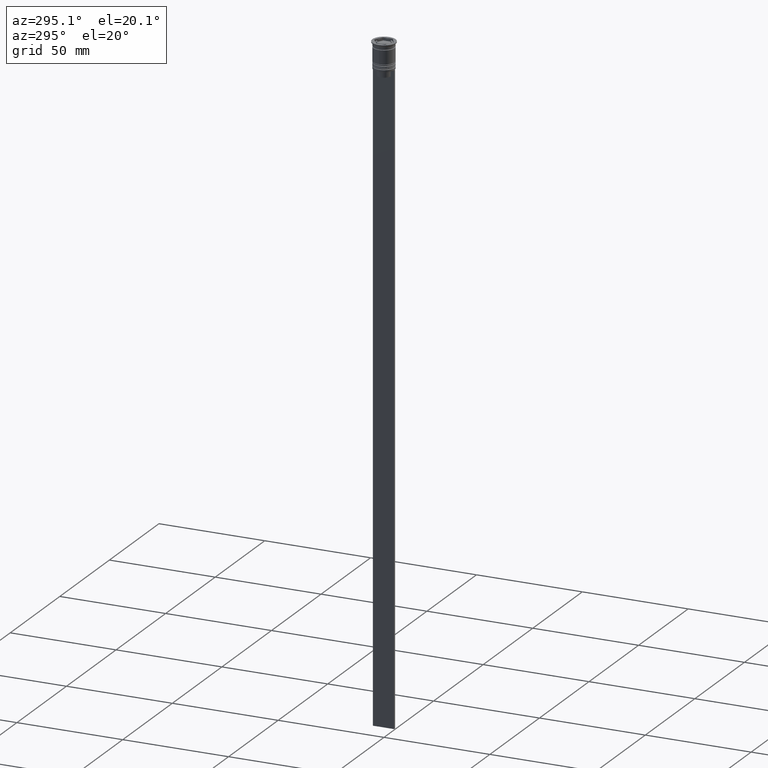
[diagram: clean part render]
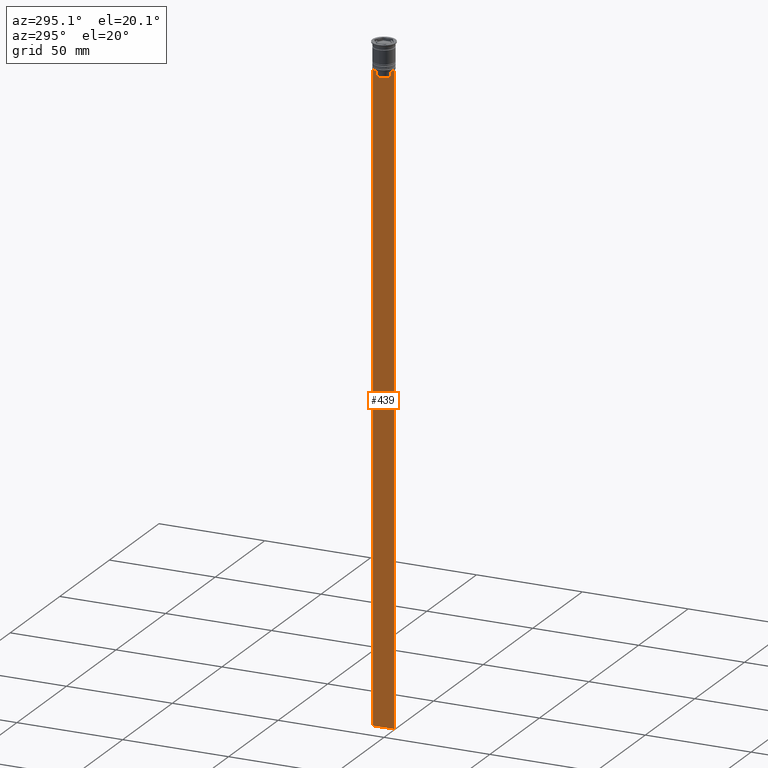
[diagram: same view with one face highlighted and labeled with its STEP entity id]
A machine part, auxiliary view. The second image highlights one B-rep face of the part: STEP entity #439.
In plain terms, the highlighted planar face has unit normal (-1, 0, 0).
Its self-contained STEP definition (entity closure, byte-faithful):
#34 = DIRECTION ( 'NONE',  ( 0.000000000000000000, -1.000000000000000000, 0.000000000000000000 ) ) ;
#39 = EDGE_CURVE ( 'NONE', #1666, #1470, #708, .T. ) ;
#58 = CARTESIAN_POINT ( 'NONE',  ( -0.5000000000000000000, 3.363034344160045208, -13.00000000000000178 ) ) ;
#72 = CARTESIAN_POINT ( 'NONE',  ( -0.5000000000000000000, 5.000000000000000888, -312.5000000000000000 ) ) ;
#96 = LINE ( 'NONE', #1085, #246 ) ;
#122 = CARTESIAN_POINT ( 'NONE',  ( -0.5000000000000000000, 5.000000000000000888, -2.450124378879110054 ) ) ;
#155 = VERTEX_POINT ( 'NONE', #1929 ) ;
#211 = EDGE_CURVE ( 'NONE', #1460, #2247, #1370, .T. ) ;
#228 = CARTESIAN_POINT ( 'NONE',  ( -0.5000000000000000000, 3.699657965831574913, -12.66677026074361301 ) ) ;
#246 = VECTOR ( 'NONE', #2482, 1000.000000000000000 ) ;
#266 = CARTESIAN_POINT ( 'NONE',  ( -0.5000000000000000000, -4.999999999999999112, -2.450124378879110054 ) ) ;
#329 = VERTEX_POINT ( 'NONE', #1436 ) ;
#424 = CARTESIAN_POINT ( 'NONE',  ( -0.5000000000000000000, -4.999999999999999112, -12.50000000000000000 ) ) ;
#437 = DIRECTION ( 'NONE',  ( 0.000000000000000000, 0.000000000000000000, -1.000000000000000000 ) ) ;
#439 = ADVANCED_FACE ( 'NONE', ( #1646 ), #2499, .T. ) ;
#463 = ORIENTED_EDGE ( 'NONE', *, *, #2083, .F. ) ;
#496 = CARTESIAN_POINT ( 'NONE',  ( -0.5000000000000000000, -4.874423042781575788, -12.50000000000000000 ) ) ;
#508 = CARTESIAN_POINT ( 'NONE',  ( -0.5000000000000000000, -4.999999999999999112, -2.450124378879110054 ) ) ;
#509 = EDGE_CURVE ( 'NONE', #904, #1625, #1903, .T. ) ;
#632 = EDGE_LOOP ( 'NONE', ( #1140, #1892, #860, #696, #700, #463, #1824, #2203, #2492, #1721, #1388, #2393 ) ) ;
#662 = DIRECTION ( 'NONE',  ( 0.000000000000000000, 0.000000000000000000, 1.000000000000000000 ) ) ;
#696 = ORIENTED_EDGE ( 'NONE', *, *, #2156, .T. ) ;
#700 = ORIENTED_EDGE ( 'NONE', *, *, #509, .F. ) ;
#703 = DIRECTION ( 'NONE',  ( 0.000000000000000000, 0.000000000000000000, -1.000000000000000000 ) ) ;
#708 = LINE ( 'NONE', #1676, #1511 ) ;
#723 = LINE ( 'NONE', #1287, #1490 ) ;
#736 = VERTEX_POINT ( 'NONE', #2398 ) ;
#756 = CARTESIAN_POINT ( 'NONE',  ( -0.5000000000000000000, -3.363034344160045208, -13.00000000000000178 ) ) ;
#774 = EDGE_CURVE ( 'NONE', #329, #736, #2208, .T. ) ;
#843 = DIRECTION ( 'NONE',  ( 0.000000000000000000, -1.000000000000000000, 0.000000000000000000 ) ) ;
#854 = LINE ( 'NONE', #508, #914 ) ;
#855 = VECTOR ( 'NONE', #2483, 1000.000000000000000 ) ;
#860 = ORIENTED_EDGE ( 'NONE', *, *, #774, .F. ) ;
#904 = VERTEX_POINT ( 'NONE', #1900 ) ;
#914 = VECTOR ( 'NONE', #703, 1000.000000000000000 ) ;
#954 = CARTESIAN_POINT ( 'NONE',  ( -0.5000000000000000000, -3.867815921162742754, -12.50000000000000000 ) ) ;
#1010 = CARTESIAN_POINT ( 'NONE',  ( -0.5000000000000000000, -4.999999999999999112, -12.50000000000000000 ) ) ;
#1017 = DIRECTION ( 'NONE',  ( 0.000000000000000000, -1.000000000000000000, 0.000000000000000000 ) ) ;
#1033 = VECTOR ( 'NONE', #1713, 1000.000000000000000 ) ;
#1047 = CARTESIAN_POINT ( 'NONE',  ( -0.5000000000000000000, -3.363034344160045208, -13.00000000000000178 ) ) ;
#1085 = CARTESIAN_POINT ( 'NONE',  ( -0.5000000000000000000, -3.363034344160045208, 0.000000000000000000 ) ) ;
#1096 = CARTESIAN_POINT ( 'NONE',  ( -0.5000000000000000000, 3.867815921162742754, -12.50000000000000000 ) ) ;
#1140 = ORIENTED_EDGE ( 'NONE', *, *, #1488, .F. ) ;
#1199 = VECTOR ( 'NONE', #34, 1000.000000000000000 ) ;
#1220 = LINE ( 'NONE', #2218, #1236 ) ;
#1236 = VECTOR ( 'NONE', #437, 1000.000000000000000 ) ;
#1265 = DIRECTION ( 'NONE',  ( -1.000000000000000000, 0.000000000000000000, 0.000000000000000000 ) ) ;
#1287 = CARTESIAN_POINT ( 'NONE',  ( -0.5000000000000000000, -4.999999999999999112, -12.50000000000000000 ) ) ;
#1314 = EDGE_CURVE ( 'NONE', #736, #2132, #723, .T. ) ;
#1370 = B_SPLINE_CURVE_WITH_KNOTS ( 'NONE', 3,
 ( #756, #2159, #1979, #2315 ),
 .UNSPECIFIED., .F., .F.,
 ( 4, 4 ),
 ( 0.01632394437298965648, 0.01703543518243618576 ),
 .UNSPECIFIED. ) ;
#1388 = ORIENTED_EDGE ( 'NONE', *, *, #2530, .F. ) ;
#1436 = CARTESIAN_POINT ( 'NONE',  ( -0.5000000000000000000, 5.000000000000000888, -12.50000000000000000 ) ) ;
#1449 = CARTESIAN_POINT ( 'NONE',  ( -0.5000000000000000000, -4.999999999999999112, -312.5000000000000000 ) ) ;
#1450 = CARTESIAN_POINT ( 'NONE',  ( -0.5000000000000000000, 3.867815921162742754, -12.50000000000000000 ) ) ;
#1457 = EDGE_CURVE ( 'NONE', #2247, #1666, #1583, .T. ) ;
#1460 = VERTEX_POINT ( 'NONE', #1047 ) ;
#1470 = VERTEX_POINT ( 'NONE', #1010 ) ;
#1488 = EDGE_CURVE ( 'NONE', #2132, #2213, #2140, .T. ) ;
#1490 = VECTOR ( 'NONE', #2089, 1000.000000000000000 ) ;
#1496 = DIRECTION ( 'NONE',  ( 0.000000000000000000, -1.000000000000000000, 0.000000000000000000 ) ) ;
#1511 = VECTOR ( 'NONE', #1496, 1000.000000000000000 ) ;
#1583 = LINE ( 'NONE', #1796, #2075 ) ;
#1593 = CARTESIAN_POINT ( 'NONE',  ( -0.5000000000000000000, 3.531412678228260216, -12.83345231756357840 ) ) ;
#1625 = VERTEX_POINT ( 'NONE', #72 ) ;
#1634 = CARTESIAN_POINT ( 'NONE',  ( -0.5000000000000000000, 3.399999999999998135, -15.50000000000000000 ) ) ;
#1646 = FACE_OUTER_BOUND ( 'NONE', #632, .T. ) ;
#1666 = VERTEX_POINT ( 'NONE', #496 ) ;
#1676 = CARTESIAN_POINT ( 'NONE',  ( -0.5000000000000000000, -4.999999999999999112, -12.50000000000000000 ) ) ;
#1713 = DIRECTION ( 'NONE',  ( 0.000000000000000000, 0.000000000000000000, -1.000000000000000000 ) ) ;
#1721 = ORIENTED_EDGE ( 'NONE', *, *, #2069, .F. ) ;
#1796 = CARTESIAN_POINT ( 'NONE',  ( -0.5000000000000000000, -4.999999999999999112, -12.50000000000000000 ) ) ;
#1813 = VECTOR ( 'NONE', #1017, 1000.000000000000000 ) ;
#1824 = ORIENTED_EDGE ( 'NONE', *, *, #39, .F. ) ;
#1892 = ORIENTED_EDGE ( 'NONE', *, *, #1314, .F. ) ;
#1895 = EDGE_CURVE ( 'NONE', #2213, #155, #1220, .T. ) ;
#1900 = CARTESIAN_POINT ( 'NONE',  ( -0.5000000000000000000, -4.999999999999999112, -312.5000000000000000 ) ) ;
#1903 = LINE ( 'NONE', #1449, #855 ) ;
#1913 = LINE ( 'NONE', #122, #1033 ) ;
#1929 = CARTESIAN_POINT ( 'NONE',  ( -0.5000000000000000000, 3.363034344160045652, -15.50000000000000000 ) ) ;
#1979 = CARTESIAN_POINT ( 'NONE',  ( -0.5000000000000000000, -3.699658232838647365, -12.66676999593996555 ) ) ;
#2069 = EDGE_CURVE ( 'NONE', #2110, #1460, #96, .T. ) ;
#2075 = VECTOR ( 'NONE', #843, 1000.000000000000000 ) ;
#2083 = EDGE_CURVE ( 'NONE', #1470, #904, #854, .T. ) ;
#2089 = DIRECTION ( 'NONE',  ( 0.000000000000000000, -1.000000000000000000, 0.000000000000000000 ) ) ;
#2110 = VERTEX_POINT ( 'NONE', #2290 ) ;
#2132 = VERTEX_POINT ( 'NONE', #1096 ) ;
#2140 = B_SPLINE_CURVE_WITH_KNOTS ( 'NONE', 3,
 ( #1450, #228, #1593, #58 ),
 .UNSPECIFIED., .F., .F.,
 ( 4, 4 ),
 ( 0.006644825462451552783, 0.007355321358912435097 ),
 .UNSPECIFIED. ) ;
#2156 = EDGE_CURVE ( 'NONE', #329, #1625, #1913, .T. ) ;
#2159 = CARTESIAN_POINT ( 'NONE',  ( -0.5000000000000000000, -3.531412985305424801, -12.83345201382502765 ) ) ;
#2203 = ORIENTED_EDGE ( 'NONE', *, *, #1457, .F. ) ;
#2208 = LINE ( 'NONE', #424, #1813 ) ;
#2213 = VERTEX_POINT ( 'NONE', #2359 ) ;
#2218 = CARTESIAN_POINT ( 'NONE',  ( -0.5000000000000000000, 3.363034344160045208, 0.000000000000000000 ) ) ;
#2224 = AXIS2_PLACEMENT_3D ( 'NONE', #266, #1265, #662 ) ;
#2247 = VERTEX_POINT ( 'NONE', #954 ) ;
#2283 = LINE ( 'NONE', #1634, #1199 ) ;
#2290 = CARTESIAN_POINT ( 'NONE',  ( -0.5000000000000000000, -3.363034344160045652, -15.50000000000000000 ) ) ;
#2315 = CARTESIAN_POINT ( 'NONE',  ( -0.5000000000000000000, -3.867815921162742754, -12.50000000000000000 ) ) ;
#2359 = CARTESIAN_POINT ( 'NONE',  ( -0.5000000000000000000, 3.363034344160045208, -13.00000000000000178 ) ) ;
#2393 = ORIENTED_EDGE ( 'NONE', *, *, #1895, .F. ) ;
#2398 = CARTESIAN_POINT ( 'NONE',  ( -0.5000000000000000000, 4.874423042781575788, -12.50000000000000000 ) ) ;
#2482 = DIRECTION ( 'NONE',  ( -0.000000000000000000, -0.000000000000000000, 1.000000000000000000 ) ) ;
#2483 = DIRECTION ( 'NONE',  ( 0.000000000000000000, 1.000000000000000000, 0.000000000000000000 ) ) ;
#2492 = ORIENTED_EDGE ( 'NONE', *, *, #211, .F. ) ;
#2499 = PLANE ( 'NONE',  #2224 ) ;
#2530 = EDGE_CURVE ( 'NONE', #155, #2110, #2283, .T. ) ;